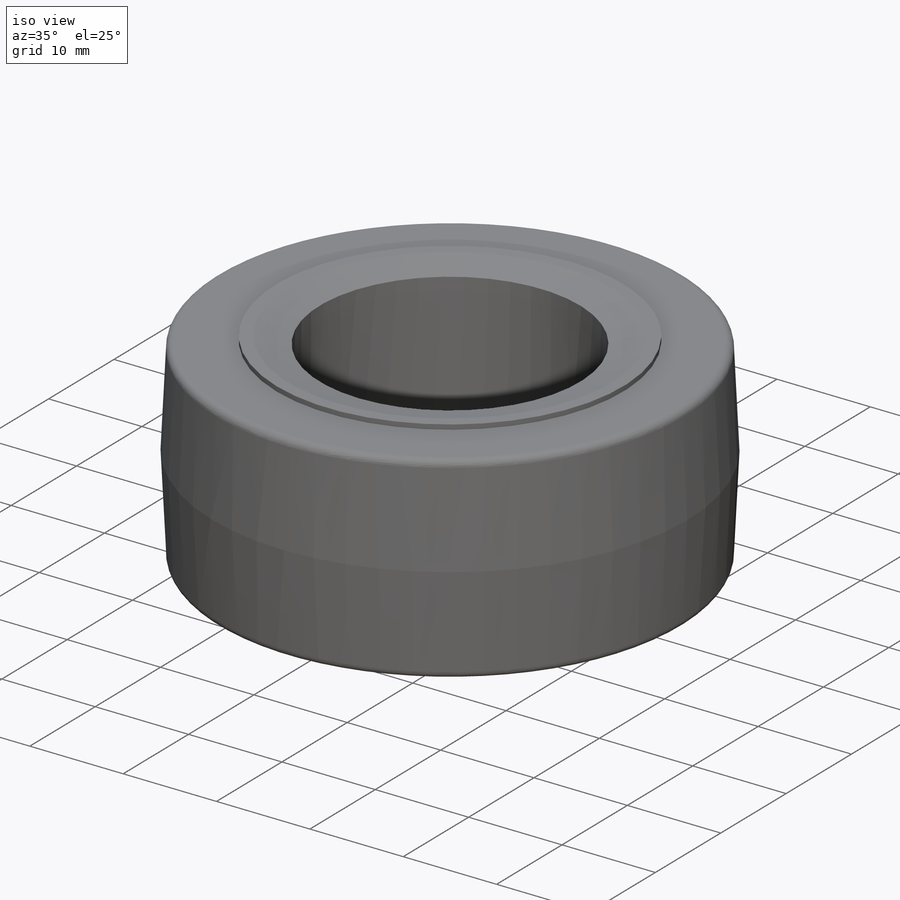
[diagram: iso view]
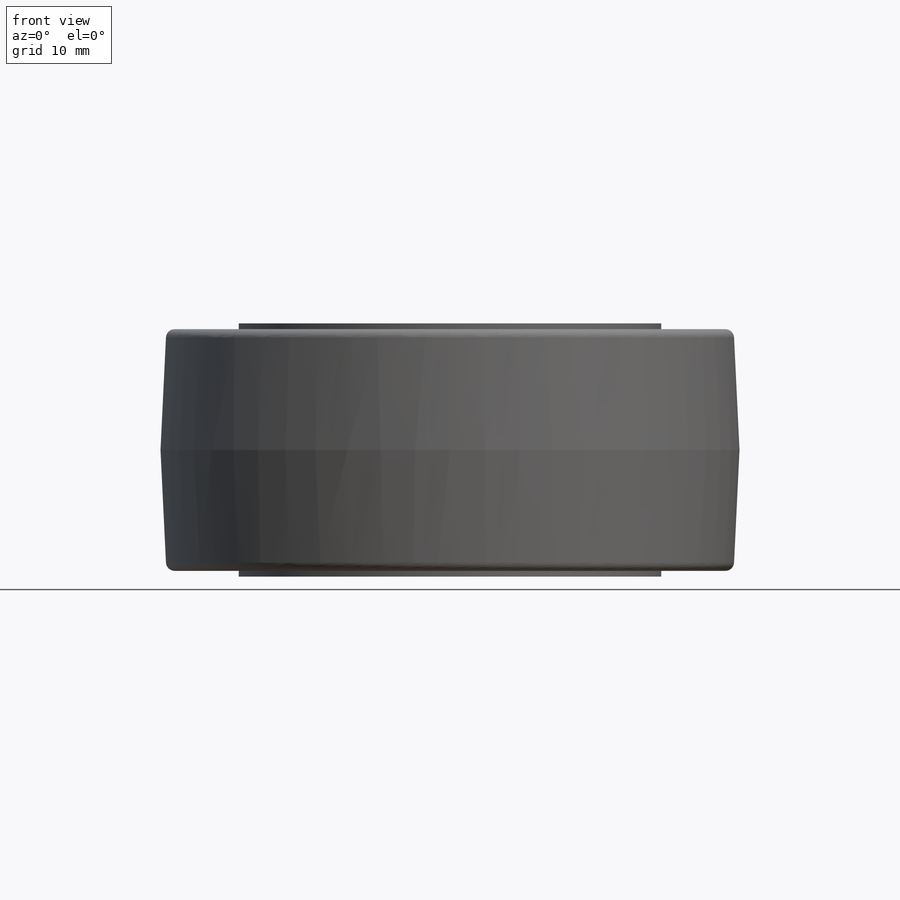
[diagram: front view]
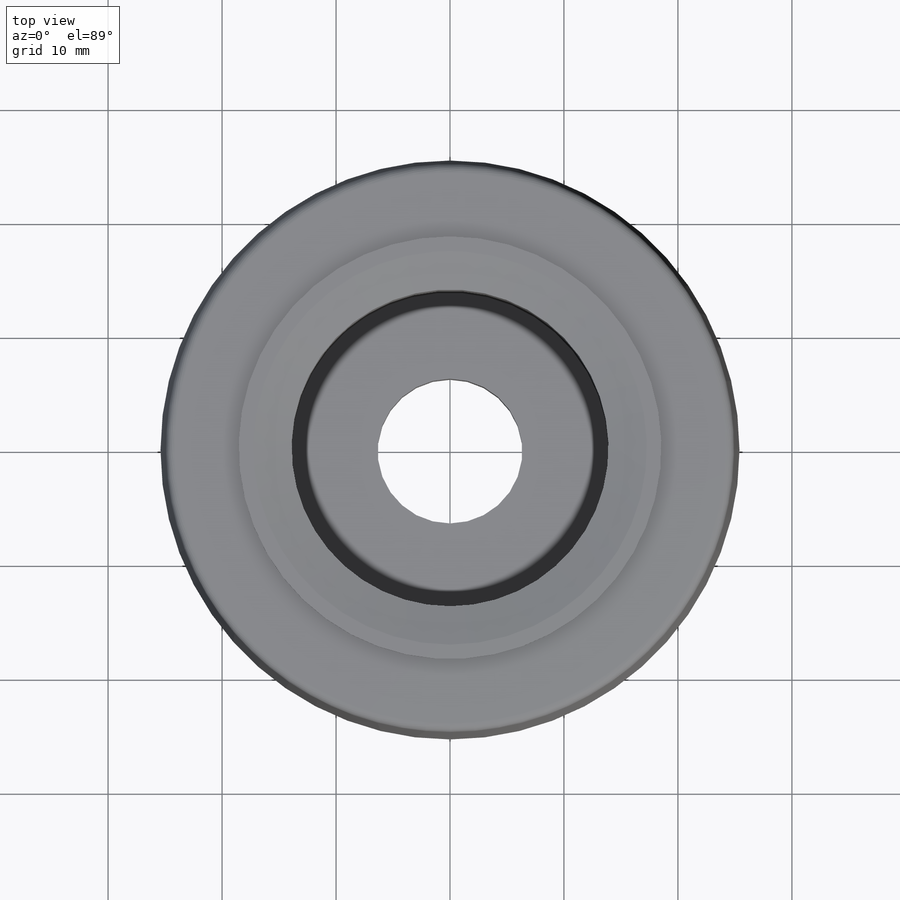
[diagram: top view]
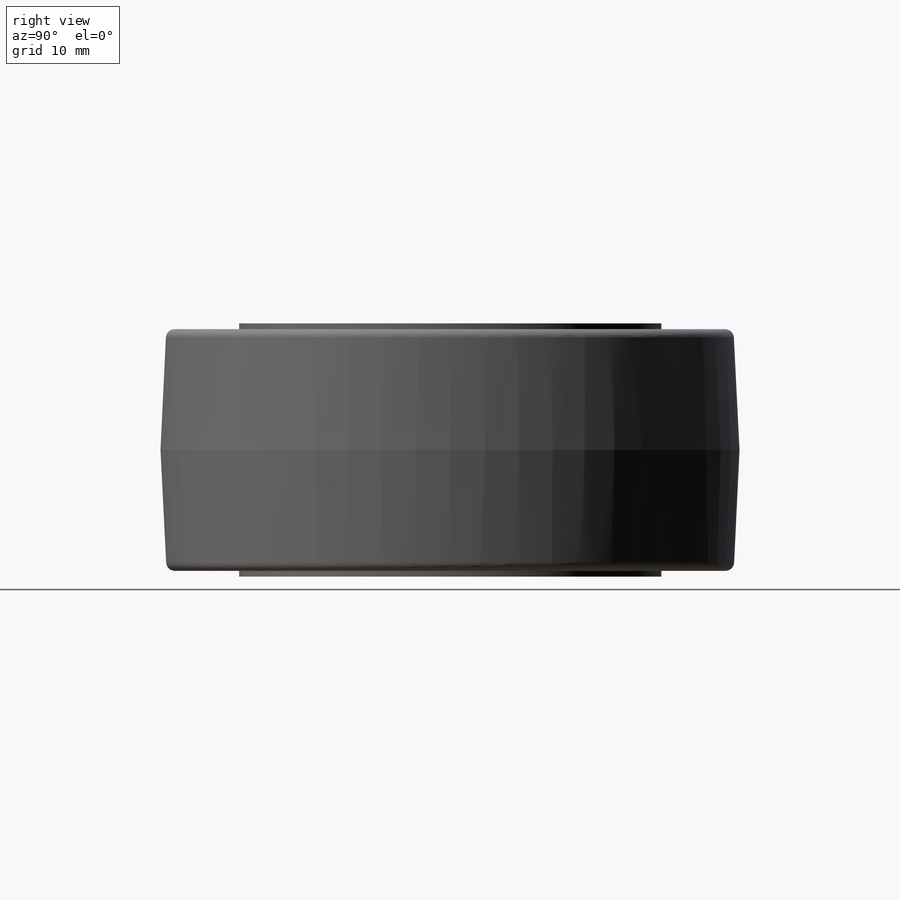
[diagram: right view]
SOLIDWORKS PART (.sldprt)
format: sldprt  version: not decoded by parser v0  size: 244,736 bytes
history: native  units: mm
features: sketch x2, material x1, revolve x1, fillet x1, cut_extrude x1 (+11 scaffold rows collapsed)
feature tree (17):
  scaffold x11  (default folders/planes/origin — collapsed)
  material  "Material <not specified>"
  sketch  "Sketch2"  dims[c1.D6=2.032mm c1.D1=22.225mm c1.D2=12.7mm c1.D3=6.35mm c1.D4=1.27mm c1.D5=2.54mm c2.D3=6.35mm c2.D7=0.508mm c2.D8=50.8mm c2.D9=0.508mm]
  revolve  "Revolve1"  Angle=360deg
  fillet  "Fillet1"  Radius=0.762mm
  sketch  "Sketch3"  dims[D1=27.8003mm]
  cut_extrude  "Cut-Extrude1"  Depth=16.51mm
decode coverage: 5 of 5 modeling features carry decoded parameters
note: suppression state not decoded; provenance and decode notes live in map.json
